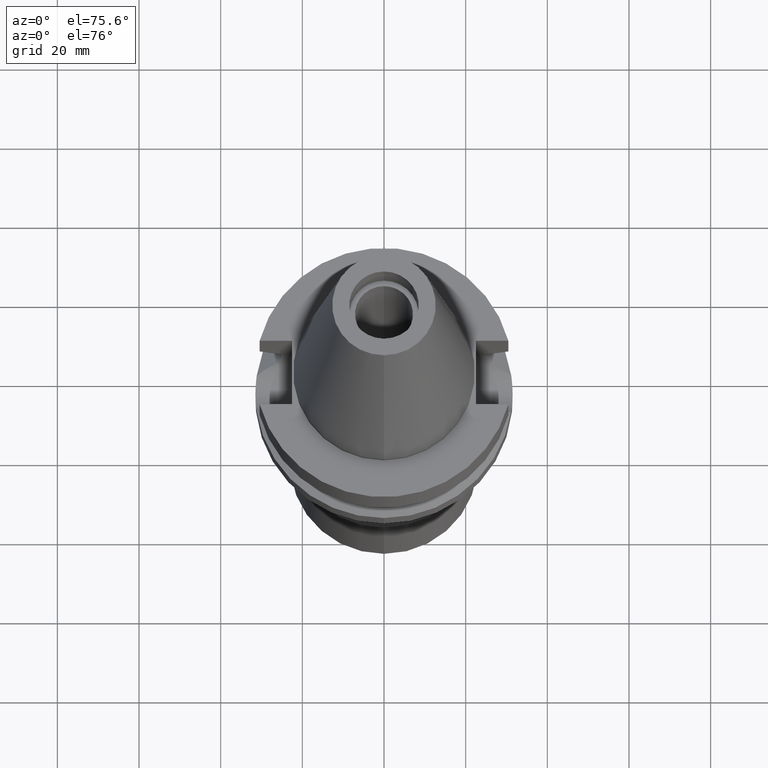
[diagram: clean part render]
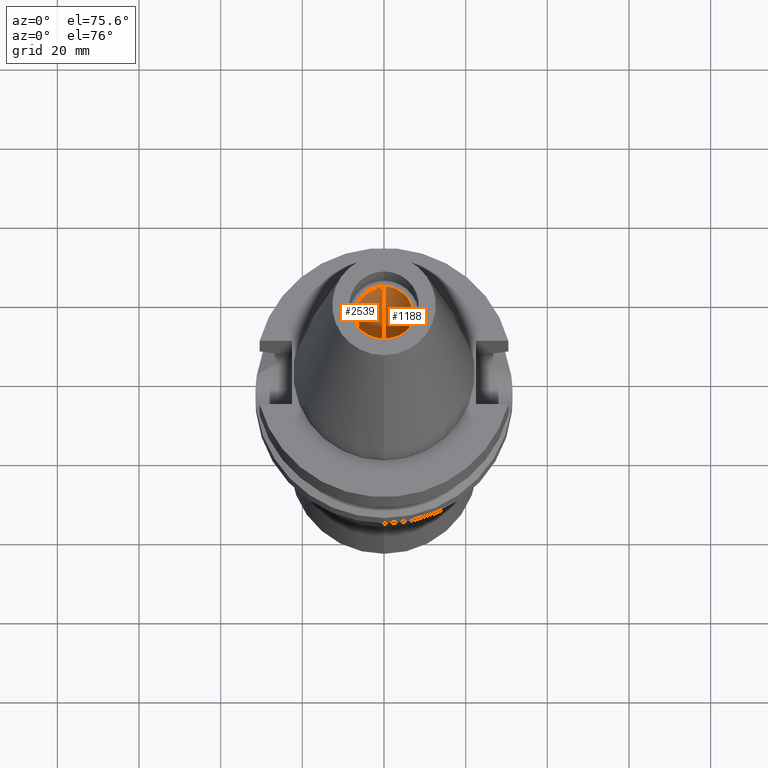
[diagram: same view with one multi-face feature highlighted, each face labeled with its STEP entity id]
A machine part, auxiliary view. The highlighted faces form ONE feature: a constant-radius fillet chain: 2 tangent blend faces with common blend radius 7.1 mm. The faces share edges in the B-rep.
Their STEP definitions:
[1] entity #1188 (Cylinder):
#27 = CIRCLE ( 'NONE', #2853, 7.100000000000000533 ) ;
#85 = EDGE_CURVE ( 'NONE', #1827, #232, #1994, .T. ) ;
#232 = VERTEX_POINT ( 'NONE', #656 ) ;
#299 = VECTOR ( 'NONE', #2385, 1000.000000000000000 ) ;
#412 = EDGE_CURVE ( 'NONE', #2020, #232, #910, .T. ) ;
#467 = CARTESIAN_POINT ( 'NONE',  ( 0.0000000000000000000, 0.0000000000000000000, 3.000000000000000000 ) ) ;
#495 = ORIENTED_EDGE ( 'NONE', *, *, #412, .T. ) ;
#497 = VECTOR ( 'NONE', #2671, 1000.000000000000000 ) ;
#641 = VERTEX_POINT ( 'NONE', #2112 ) ;
#656 = CARTESIAN_POINT ( 'NONE',  ( 0.0000000000000000000, 7.100000000000000533, 56.39999999999999858 ) ) ;
#690 = DIRECTION ( 'NONE',  ( 0.0000000000000000000, 0.0000000000000000000, -1.000000000000000000 ) ) ;
#701 = ORIENTED_EDGE ( 'NONE', *, *, #85, .F. ) ;
#731 = EDGE_CURVE ( 'NONE', #641, #2020, #2574, .T. ) ;
#833 = CYLINDRICAL_SURFACE ( 'NONE', #1156, 7.100000000000000533 ) ;
#910 = CIRCLE ( 'NONE', #961, 7.100000000000000533 ) ;
#929 = CARTESIAN_POINT ( 'NONE',  ( 0.0000000000000000000, 0.0000000000000000000, 56.39999999999999858 ) ) ;
#961 = AXIS2_PLACEMENT_3D ( 'NONE', #929, #1198, #2833 ) ;
#1061 = CARTESIAN_POINT ( 'NONE',  ( 0.0000000000000000000, 7.100000000000000533, 3.000000000000000000 ) ) ;
#1156 = AXIS2_PLACEMENT_3D ( 'NONE', #1776, #2719, #2485 ) ;
#1187 = ORIENTED_EDGE ( 'NONE', *, *, #731, .T. ) ;
#1188 = ADVANCED_FACE ( 'NONE', ( #2240 ), #833, .F. ) ;
#1198 = DIRECTION ( 'NONE',  ( 0.0000000000000000000, 0.0000000000000000000, 1.000000000000000000 ) ) ;
#1291 = CARTESIAN_POINT ( 'NONE',  ( 0.0000000000000000000, 7.100000000000000533, 3.000000000000000000 ) ) ;
#1442 = CARTESIAN_POINT ( 'NONE',  ( 0.0000000000000000000, -7.100000000000000533, 3.000000000000000000 ) ) ;
#1626 = DIRECTION ( 'NONE',  ( 0.0000000000000000000, 1.000000000000000000, 0.0000000000000000000 ) ) ;
#1685 = CARTESIAN_POINT ( 'NONE',  ( 0.0000000000000000000, -7.100000000000000533, 56.39999999999999858 ) ) ;
#1776 = CARTESIAN_POINT ( 'NONE',  ( 0.0000000000000000000, 0.0000000000000000000, 0.0000000000000000000 ) ) ;
#1827 = VERTEX_POINT ( 'NONE', #1061 ) ;
#1994 = LINE ( 'NONE', #1291, #497 ) ;
#2020 = VERTEX_POINT ( 'NONE', #1685 ) ;
#2112 = CARTESIAN_POINT ( 'NONE',  ( 0.0000000000000000000, -7.100000000000000533, 3.000000000000000000 ) ) ;
#2185 = ORIENTED_EDGE ( 'NONE', *, *, #2973, .T. ) ;
#2240 = FACE_OUTER_BOUND ( 'NONE', #3045, .T. ) ;
#2385 = DIRECTION ( 'NONE',  ( 0.0000000000000000000, 0.0000000000000000000, 1.000000000000000000 ) ) ;
#2485 = DIRECTION ( 'NONE',  ( 0.0000000000000000000, -1.000000000000000000, 0.0000000000000000000 ) ) ;
#2574 = LINE ( 'NONE', #1442, #299 ) ;
#2671 = DIRECTION ( 'NONE',  ( 0.0000000000000000000, 0.0000000000000000000, 1.000000000000000000 ) ) ;
#2719 = DIRECTION ( 'NONE',  ( 0.0000000000000000000, 0.0000000000000000000, -1.000000000000000000 ) ) ;
#2833 = DIRECTION ( 'NONE',  ( 0.0000000000000000000, -1.000000000000000000, 0.0000000000000000000 ) ) ;
#2853 = AXIS2_PLACEMENT_3D ( 'NONE', #467, #690, #1626 ) ;
#2973 = EDGE_CURVE ( 'NONE', #1827, #641, #27, .T. ) ;
#3045 = EDGE_LOOP ( 'NONE', ( #2185, #1187, #495, #701 ) ) ;
[2] entity #2539 (Cylinder):
#85 = EDGE_CURVE ( 'NONE', #1827, #232, #1994, .T. ) ;
#232 = VERTEX_POINT ( 'NONE', #656 ) ;
#299 = VECTOR ( 'NONE', #2385, 1000.000000000000000 ) ;
#497 = VECTOR ( 'NONE', #2671, 1000.000000000000000 ) ;
#617 = CARTESIAN_POINT ( 'NONE',  ( 0.0000000000000000000, 0.0000000000000000000, 3.000000000000000000 ) ) ;
#641 = VERTEX_POINT ( 'NONE', #2112 ) ;
#646 = DIRECTION ( 'NONE',  ( 0.0000000000000000000, -1.000000000000000000, 0.0000000000000000000 ) ) ;
#656 = CARTESIAN_POINT ( 'NONE',  ( 0.0000000000000000000, 7.100000000000000533, 56.39999999999999858 ) ) ;
#731 = EDGE_CURVE ( 'NONE', #641, #2020, #2574, .T. ) ;
#1061 = CARTESIAN_POINT ( 'NONE',  ( 0.0000000000000000000, 7.100000000000000533, 3.000000000000000000 ) ) ;
#1283 = EDGE_CURVE ( 'NONE', #641, #1827, #1907, .T. ) ;
#1291 = CARTESIAN_POINT ( 'NONE',  ( 0.0000000000000000000, 7.100000000000000533, 3.000000000000000000 ) ) ;
#1345 = CARTESIAN_POINT ( 'NONE',  ( 0.0000000000000000000, 0.0000000000000000000, 0.0000000000000000000 ) ) ;
#1442 = CARTESIAN_POINT ( 'NONE',  ( 0.0000000000000000000, -7.100000000000000533, 3.000000000000000000 ) ) ;
#1475 = EDGE_LOOP ( 'NONE', ( #2851, #2074, #2721, #1995 ) ) ;
#1480 = DIRECTION ( 'NONE',  ( 0.0000000000000000000, 0.0000000000000000000, 1.000000000000000000 ) ) ;
#1583 = FACE_OUTER_BOUND ( 'NONE', #1475, .T. ) ;
#1685 = CARTESIAN_POINT ( 'NONE',  ( 0.0000000000000000000, -7.100000000000000533, 56.39999999999999858 ) ) ;
#1723 = CARTESIAN_POINT ( 'NONE',  ( 0.0000000000000000000, 0.0000000000000000000, 56.39999999999999858 ) ) ;
#1813 = AXIS2_PLACEMENT_3D ( 'NONE', #1723, #1480, #2429 ) ;
#1827 = VERTEX_POINT ( 'NONE', #1061 ) ;
#1907 = CIRCLE ( 'NONE', #2196, 7.100000000000000533 ) ;
#1994 = LINE ( 'NONE', #1291, #497 ) ;
#1995 = ORIENTED_EDGE ( 'NONE', *, *, #85, .T. ) ;
#2020 = VERTEX_POINT ( 'NONE', #1685 ) ;
#2033 = DIRECTION ( 'NONE',  ( 0.0000000000000000000, -1.000000000000000000, 0.0000000000000000000 ) ) ;
#2074 = ORIENTED_EDGE ( 'NONE', *, *, #731, .F. ) ;
#2112 = CARTESIAN_POINT ( 'NONE',  ( 0.0000000000000000000, -7.100000000000000533, 3.000000000000000000 ) ) ;
#2196 = AXIS2_PLACEMENT_3D ( 'NONE', #617, #2700, #2033 ) ;
#2293 = DIRECTION ( 'NONE',  ( 0.0000000000000000000, 0.0000000000000000000, -1.000000000000000000 ) ) ;
#2385 = DIRECTION ( 'NONE',  ( 0.0000000000000000000, 0.0000000000000000000, 1.000000000000000000 ) ) ;
#2420 = EDGE_CURVE ( 'NONE', #232, #2020, #2756, .T. ) ;
#2429 = DIRECTION ( 'NONE',  ( 0.0000000000000000000, 1.000000000000000000, 0.0000000000000000000 ) ) ;
#2522 = CYLINDRICAL_SURFACE ( 'NONE', #2994, 7.100000000000000533 ) ;
#2539 = ADVANCED_FACE ( 'NONE', ( #1583 ), #2522, .F. ) ;
#2574 = LINE ( 'NONE', #1442, #299 ) ;
#2671 = DIRECTION ( 'NONE',  ( 0.0000000000000000000, 0.0000000000000000000, 1.000000000000000000 ) ) ;
#2700 = DIRECTION ( 'NONE',  ( 0.0000000000000000000, 0.0000000000000000000, -1.000000000000000000 ) ) ;
#2721 = ORIENTED_EDGE ( 'NONE', *, *, #1283, .T. ) ;
#2756 = CIRCLE ( 'NONE', #1813, 7.100000000000000533 ) ;
#2851 = ORIENTED_EDGE ( 'NONE', *, *, #2420, .T. ) ;
#2994 = AXIS2_PLACEMENT_3D ( 'NONE', #1345, #2293, #646 ) ;